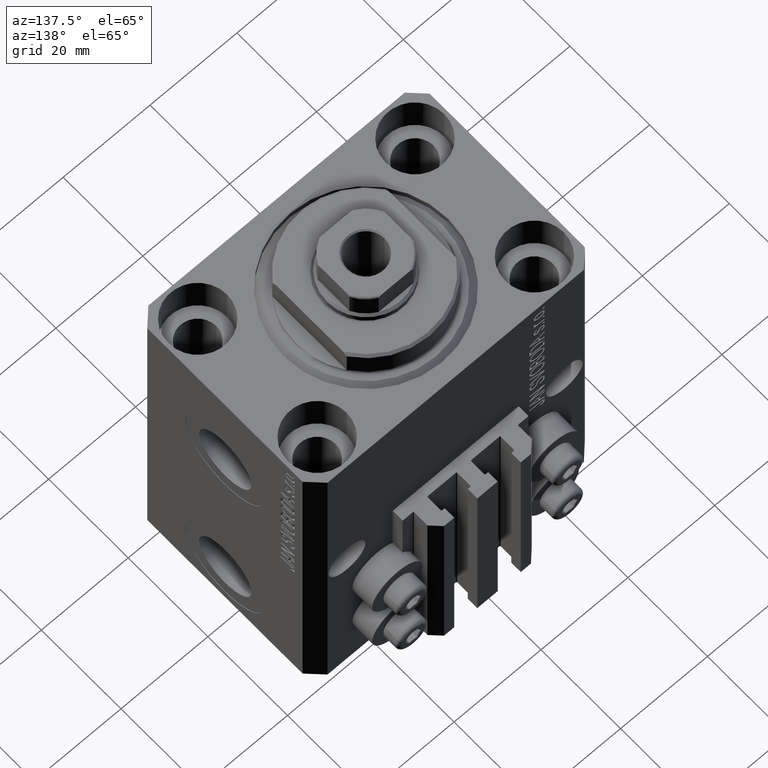
[diagram: clean part render]
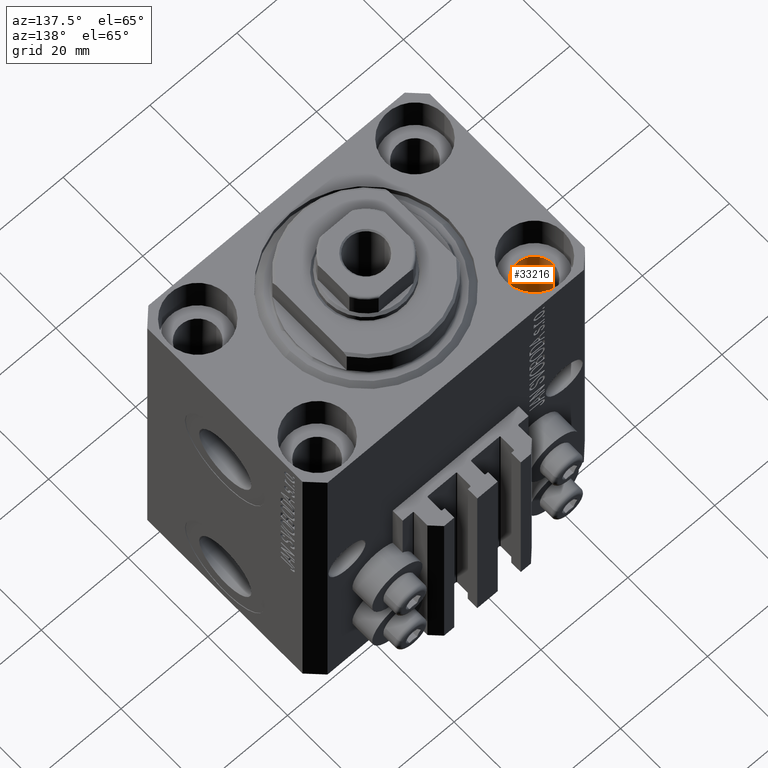
[diagram: same view with one face highlighted and labeled with its STEP entity id]
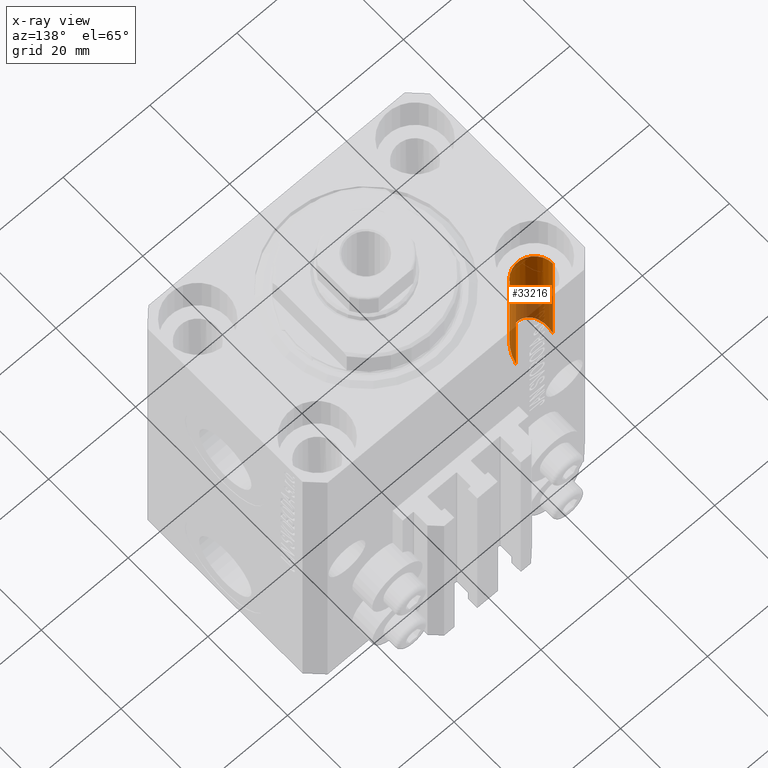
[diagram: x-ray of the same camera — body ghosted, the highlighted face saturated]
A machine part, auxiliary view. The second image highlights one B-rep face of the part: STEP entity #33216.
The next image is the same camera in x-ray: the body ghosted, the highlighted face saturated — about 53% of this face is hidden behind the body in this view.
In plain terms, the highlighted cylindrical surface (edge-blend (fillet) strip) has radius 4.25 mm, axis along (0, 0, 1).
Its self-contained STEP definition (entity closure, byte-faithful):
#390 = AXIS2_PLACEMENT_3D ( 'NONE', #45570, #38316, #1655 ) ;
#1655 = DIRECTION ( 'NONE',  ( 1.000000000000000000, 0.000000000000000000, 0.000000000000000000 ) ) ;
#2230 = ORIENTED_EDGE ( 'NONE', *, *, #14492, .T. ) ;
#4959 = ORIENTED_EDGE ( 'NONE', *, *, #15066, .T. ) ;
#5295 = FACE_OUTER_BOUND ( 'NONE', #36621, .T. ) ;
#5538 = LINE ( 'NONE', #9628, #24298 ) ;
#6121 = ORIENTED_EDGE ( 'NONE', *, *, #18953, .F. ) ;
#8985 = ORIENTED_EDGE ( 'NONE', *, *, #9606, .T. ) ;
#9606 = EDGE_CURVE ( 'NONE', #16409, #30327, #35011, .T. ) ;
#9628 = CARTESIAN_POINT ( 'NONE',  ( -29.25000000002254197, 15.00000000000000000, -77.00000000000000000 ) ) ;
#11530 = CARTESIAN_POINT ( 'NONE',  ( -29.25000000000816058, 15.00000000000000000, -37.00000000000000000 ) ) ;
#14492 = EDGE_CURVE ( 'NONE', #36980, #40808, #38967, .T. ) ;
#15066 = EDGE_CURVE ( 'NONE', #40808, #16409, #5538, .T. ) ;
#15169 = CARTESIAN_POINT ( 'NONE',  ( -29.25000000000816058, 15.00000000000000000, -37.00000000000000000 ) ) ;
#16409 = VERTEX_POINT ( 'NONE', #24071 ) ;
#16615 = CARTESIAN_POINT ( 'NONE',  ( -25.00000000000000355, 15.00000000000000000, -77.00000000000000000 ) ) ;
#18953 = EDGE_CURVE ( 'NONE', #36980, #30327, #34208, .T. ) ;
#19990 = CYLINDRICAL_SURFACE ( 'NONE', #40976, 4.250000000022537527 ) ;
#20219 = DIRECTION ( 'NONE',  ( -0.000000000000000000, -0.000000000000000000, 1.000000000000000000 ) ) ;
#24071 = CARTESIAN_POINT ( 'NONE',  ( -29.25000000002254197, 15.00000000000000000, -9.000000000000000000 ) ) ;
#24298 = VECTOR ( 'NONE', #34943, 1000.000000000000000 ) ;
#30327 = VERTEX_POINT ( 'NONE', #36790 ) ;
#33216 = ADVANCED_FACE ( 'NONE', ( #5295 ), #19990, .F. ) ;
#34208 = LINE ( 'NONE', #37853, #36020 ) ;
#34943 = DIRECTION ( 'NONE',  ( -0.000000000000000000, -0.000000000000000000, 1.000000000000000000 ) ) ;
#35011 = CIRCLE ( 'NONE', #390, 4.250000000022537527 ) ;
#36020 = VECTOR ( 'NONE', #45813, 1000.000000000000000 ) ;
#36621 = EDGE_LOOP ( 'NONE', ( #2230, #4959, #8985, #6121 ) ) ;
#36790 = CARTESIAN_POINT ( 'NONE',  ( -20.74999999997746869, 15.00000000000000000, -9.000000000000000000 ) ) ;
#36980 = VERTEX_POINT ( 'NONE', #41170 ) ;
#37853 = CARTESIAN_POINT ( 'NONE',  ( -20.74999999997746869, 15.00000000000000000, -77.00000000000000000 ) ) ;
#38316 = DIRECTION ( 'NONE',  ( 0.000000000000000000, 0.000000000000000000, 1.000000000000000000 ) ) ;
#38967 =( BOUNDED_CURVE ( )  B_SPLINE_CURVE ( 3, ( #40748, #40274, #43902, #15169 ),
 .UNSPECIFIED., .F., .F. ) 
 B_SPLINE_CURVE_WITH_KNOTS ( ( 4, 4 ),
 ( 4.712388980384689674, 7.853981633974482790 ),
 .UNSPECIFIED. ) 
 CURVE ( )  GEOMETRIC_REPRESENTATION_ITEM ( )  RATIONAL_B_SPLINE_CURVE ( ( 1.000000000000000000, 0.3333333333333333703, 0.3333333333333333703, 1.000000000000000000 ) ) 
 REPRESENTATION_ITEM ( '' )  );
#40274 = CARTESIAN_POINT ( 'NONE',  ( -20.74999999999183942, 6.499999999983686827, -28.49999999998368594 ) ) ;
#40748 = CARTESIAN_POINT ( 'NONE',  ( -20.74999999999183942, 15.00000000000000000, -37.00000000000000000 ) ) ;
#40808 = VERTEX_POINT ( 'NONE', #11530 ) ;
#40976 = AXIS2_PLACEMENT_3D ( 'NONE', #16615, #20219, #42190 ) ;
#41170 = CARTESIAN_POINT ( 'NONE',  ( -20.74999999999183942, 15.00000000000000000, -37.00000000000000000 ) ) ;
#42190 = DIRECTION ( 'NONE',  ( 1.000000000000000000, 0.000000000000000000, 0.000000000000000000 ) ) ;
#43902 = CARTESIAN_POINT ( 'NONE',  ( -29.25000000000815703, 6.499999999983684162, -28.49999999998368594 ) ) ;
#45570 = CARTESIAN_POINT ( 'NONE',  ( -25.00000000000000355, 15.00000000000000000, -9.000000000000000000 ) ) ;
#45813 = DIRECTION ( 'NONE',  ( -0.000000000000000000, -0.000000000000000000, 1.000000000000000000 ) ) ;